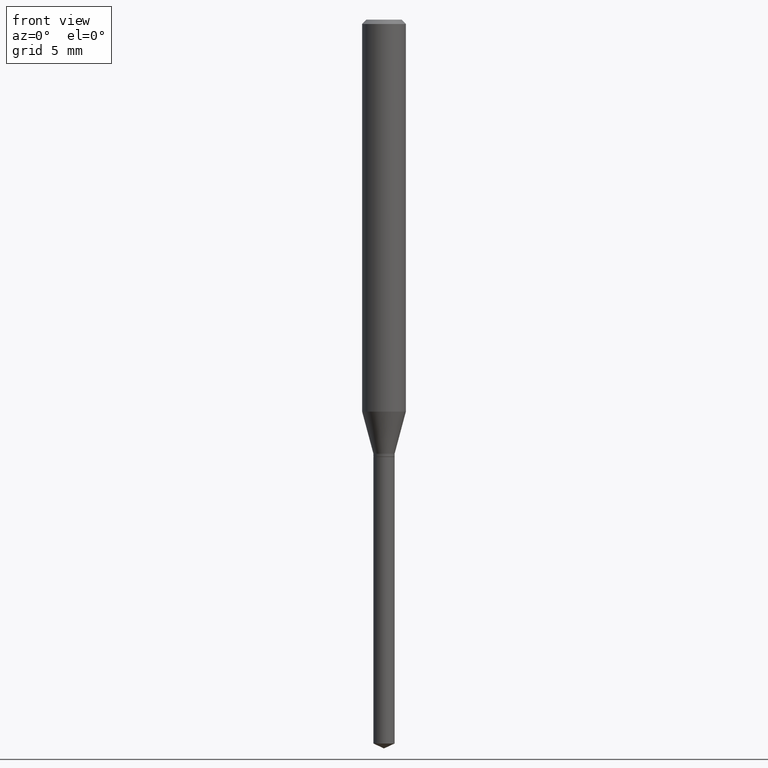
[diagram: clean part render]
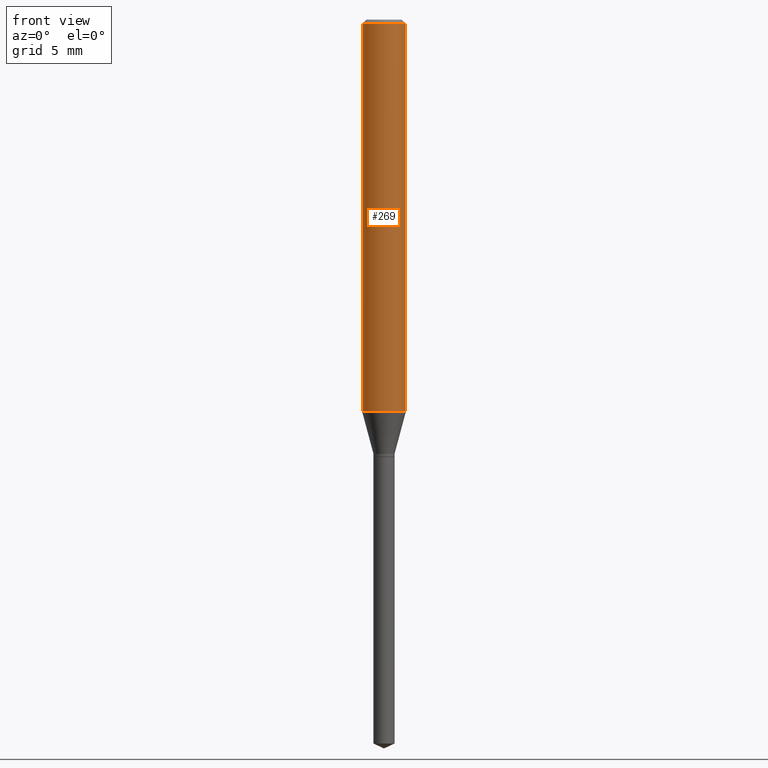
[diagram: same view with one face highlighted and labeled with its STEP entity id]
A machine part, front view. The second image highlights one B-rep face of the part: STEP entity #269.
In plain terms, the highlighted cylindrical surface (edge-blend (fillet) strip) has radius 1.4999 mm, axis along (-0, 0, 1).
Its self-contained STEP definition (entity closure, byte-faithful):
#9 = EDGE_CURVE ( 'NONE', #285, #289, #73, .T. ) ;
#28 = AXIS2_PLACEMENT_3D ( 'NONE', #384, #153, #339 ) ;
#37 = EDGE_CURVE ( 'NONE', #216, #285, #455, .T. ) ;
#49 = ORIENTED_EDGE ( 'NONE', *, *, #37, .F. ) ;
#55 = LINE ( 'NONE', #359, #383 ) ;
#57 = DIRECTION ( 'NONE',  ( -2.445468806185136597E-29, 3.491481338843145583E-15, 1.000000000000000000 ) ) ;
#73 = CIRCLE ( 'NONE', #343, 0.05904999999999999832 ) ;
#90 = CARTESIAN_POINT ( 'NONE',  ( 0.05904999999999999832, -4.535783407291118600E-16, -0.01181000000000007218 ) ) ;
#91 = EDGE_LOOP ( 'NONE', ( #49, #439, #94, #404 ) ) ;
#94 = ORIENTED_EDGE ( 'NONE', *, *, #426, .T. ) ;
#98 = CARTESIAN_POINT ( 'NONE',  ( 2.590173187748429054E-29, -3.698080845080651736E-15, -1.059172450369149088 ) ) ;
#99 = CARTESIAN_POINT ( 'NONE',  ( 2.888098660104664204E-31, -4.123439461173780263E-17, -0.01181000000000007218 ) ) ;
#121 = CARTESIAN_POINT ( 'NONE',  ( -0.05905000000000006771, 4.195754854663396409E-16, -2.904631170795525045E-30 ) ) ;
#128 = DIRECTION ( 'NONE',  ( 1.000000000000000000, -6.982962677686264344E-15, 0.000000000000000000 ) ) ;
#153 = DIRECTION ( 'NONE',  ( -2.445468806185136597E-29, 3.491481338843145583E-15, 1.000000000000000000 ) ) ;
#159 = DIRECTION ( 'NONE',  ( -2.445468806185136877E-29, 3.491481338843145188E-15, 1.000000000000000000 ) ) ;
#162 = AXIS2_PLACEMENT_3D ( 'NONE', #98, #465, #128 ) ;
#172 = DIRECTION ( 'NONE',  ( -2.445468806185136877E-29, 3.491481338843145188E-15, 1.000000000000000000 ) ) ;
#195 = VECTOR ( 'NONE', #159, 39.37007874015748143 ) ;
#214 = DIRECTION ( 'NONE',  ( 1.000000000000000000, -6.982962677686266711E-15, 0.000000000000000000 ) ) ;
#216 = VERTEX_POINT ( 'NONE', #453 ) ;
#218 = CIRCLE ( 'NONE', #162, 0.05905000000000013710 ) ;
#235 = CARTESIAN_POINT ( 'NONE',  ( 0.05905000000000013710, -4.110424791198027445E-15, -1.059172450369149088 ) ) ;
#269 = ADVANCED_FACE ( 'NONE', ( #340 ), #301, .T. ) ;
#282 = VERTEX_POINT ( 'NONE', #235 ) ;
#285 = VERTEX_POINT ( 'NONE', #306 ) ;
#289 = VERTEX_POINT ( 'NONE', #90 ) ;
#301 = CYLINDRICAL_SURFACE ( 'NONE', #28, 0.05905000000000006771 ) ;
#306 = CARTESIAN_POINT ( 'NONE',  ( -0.05904999999999999832, -1.450082134379854451E-15, -0.01181000000000007218 ) ) ;
#339 = DIRECTION ( 'NONE',  ( 1.000000000000000000, -6.982962677686266711E-15, 4.876176775795936353E-29 ) ) ;
#340 = FACE_OUTER_BOUND ( 'NONE', #91, .T. ) ;
#343 = AXIS2_PLACEMENT_3D ( 'NONE', #99, #57, #214 ) ;
#359 = CARTESIAN_POINT ( 'NONE',  ( 0.05905000000000006771, -4.123439461173745257E-16, 2.879382386107503723E-30 ) ) ;
#383 = VECTOR ( 'NONE', #172, 39.37007874015748143 ) ;
#384 = CARTESIAN_POINT ( 'NONE',  ( 0.000000000000000000, 0.000000000000000000, 0.000000000000000000 ) ) ;
#404 = ORIENTED_EDGE ( 'NONE', *, *, #9, .F. ) ;
#405 = EDGE_CURVE ( 'NONE', #216, #282, #218, .T. ) ;
#426 = EDGE_CURVE ( 'NONE', #282, #289, #55, .T. ) ;
#439 = ORIENTED_EDGE ( 'NONE', *, *, #405, .T. ) ;
#453 = CARTESIAN_POINT ( 'NONE',  ( -0.05905000000000013710, -3.278505359614311455E-15, -1.059172450369149088 ) ) ;
#455 = LINE ( 'NONE', #121, #195 ) ;
#465 = DIRECTION ( 'NONE',  ( -2.445468806185136597E-29, 3.491481338843145583E-15, 1.000000000000000000 ) ) ;